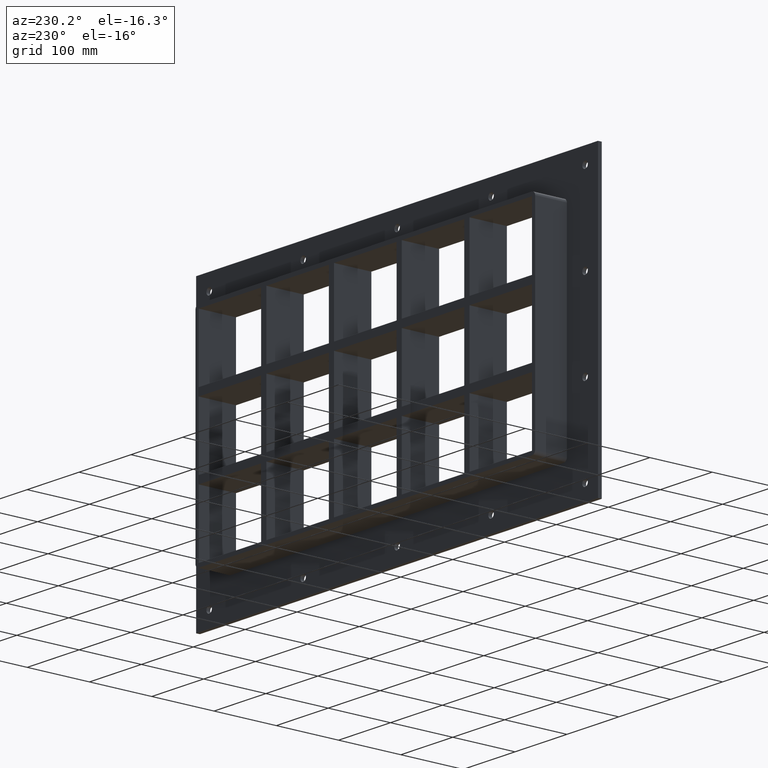
[diagram: clean part render]
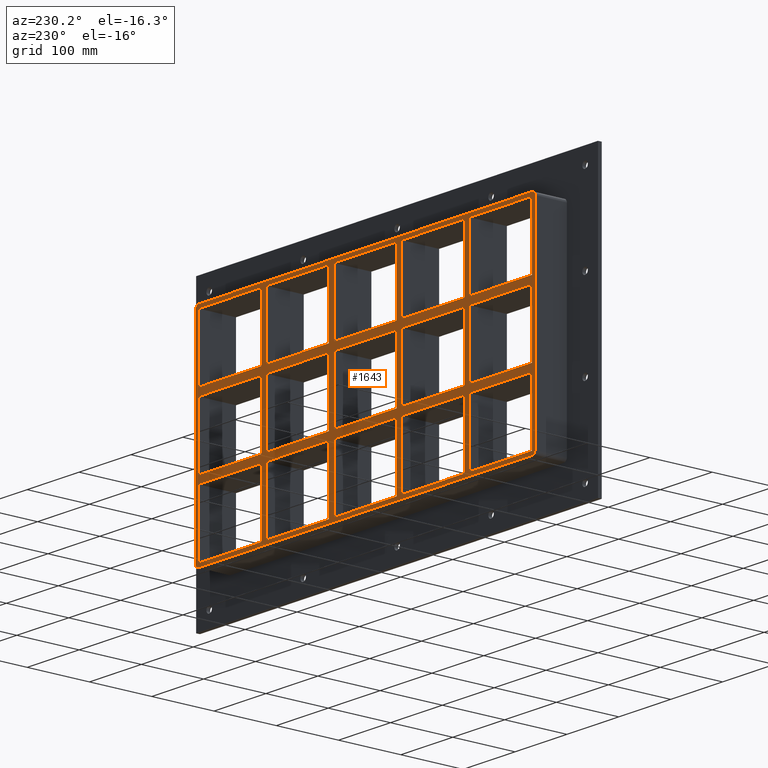
[diagram: same view with one face highlighted and labeled with its STEP entity id]
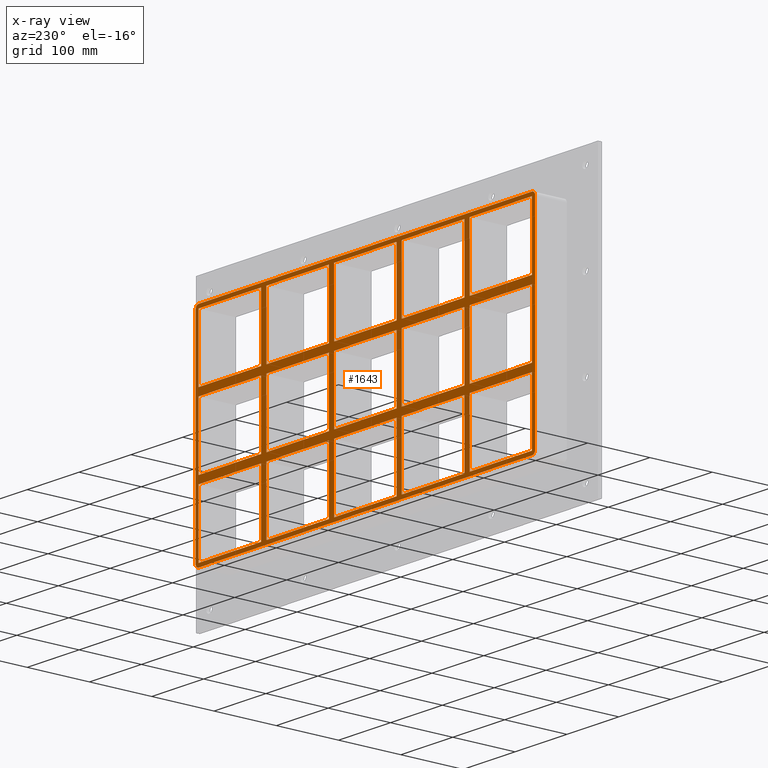
[diagram: x-ray of the same camera — body ghosted, the highlighted face saturated]
A machine part, auxiliary view. The second image highlights one B-rep face of the part: STEP entity #1643.
The next image is the same camera in x-ray: the body ghosted, the highlighted face saturated — about 0% of this face is hidden behind the body in this view.
In plain terms, the highlighted planar face has unit normal (0, 1, 0).
Its self-contained STEP definition (entity closure, byte-faithful):
#467=CARTESIAN_POINT('',(-200.7500000000021,57.0,50.499999999989811));
#468=VERTEX_POINT('',#467);
#483=CARTESIAN_POINT('',(-321.25000000000045,57.0,50.499999999989775));
#484=VERTEX_POINT('',#483);
#491=CARTESIAN_POINT('',(-200.75000000000205,57.0,50.499999999989782));
#492=DIRECTION('',(-1.0,0.0,0.0));
#493=VECTOR('',#492,120.49999999999841);
#494=LINE('',#491,#493);
#495=EDGE_CURVE('',#468,#484,#494,.T.);
#507=CARTESIAN_POINT('',(-70.250000000002046,57.0,50.499999999989797));
#508=VERTEX_POINT('',#507);
#523=CARTESIAN_POINT('',(-190.75000000000728,57.0,50.499999999989797));
#524=VERTEX_POINT('',#523);
#531=CARTESIAN_POINT('',(-70.250000000002046,57.0,50.49999999998979));
#532=DIRECTION('',(-1.0,0.0,0.0));
#533=VECTOR('',#532,120.50000000000523);
#534=LINE('',#531,#533);
#535=EDGE_CURVE('',#508,#524,#534,.T.);
#547=CARTESIAN_POINT('',(60.249999999997925,57.0,50.499999999989811));
#548=VERTEX_POINT('',#547);
#563=CARTESIAN_POINT('',(-60.250000000007304,57.0,50.499999999989797));
#564=VERTEX_POINT('',#563);
#571=CARTESIAN_POINT('',(60.249999999997954,57.0,50.499999999989804));
#572=DIRECTION('',(-1.0,0.0,0.0));
#573=VECTOR('',#572,120.50000000000523);
#574=LINE('',#571,#573);
#575=EDGE_CURVE('',#548,#564,#574,.T.);
#585=CARTESIAN_POINT('',(200.74999999999278,57.0,50.499999999989818));
#586=VERTEX_POINT('',#585);
#595=CARTESIAN_POINT('',(321.25,57.0,50.499999999989825));
#596=VERTEX_POINT('',#595);
#597=CARTESIAN_POINT('',(321.25,57.0,50.499999999989825));
#598=DIRECTION('',(-1.0,0.0,0.0));
#599=VECTOR('',#598,120.50000000000722);
#600=LINE('',#597,#599);
#601=EDGE_CURVE('',#596,#586,#600,.T.);
#627=CARTESIAN_POINT('',(190.74999999999795,57.0,50.499999999989818));
#628=VERTEX_POINT('',#627);
#643=CARTESIAN_POINT('',(70.249999999992738,57.0,50.499999999989811));
#644=VERTEX_POINT('',#643);
#651=CARTESIAN_POINT('',(190.74999999999795,57.0,50.499999999989811));
#652=DIRECTION('',(-1.0,0.0,0.0));
#653=VECTOR('',#652,120.50000000000523);
#654=LINE('',#651,#653);
#655=EDGE_CURVE('',#628,#644,#654,.T.);
#665=CARTESIAN_POINT('',(-200.7500000000021,57.0,62.499999999999893));
#666=VERTEX_POINT('',#665);
#675=CARTESIAN_POINT('',(-321.25000000000045,57.0,62.499999999999893));
#676=VERTEX_POINT('',#675);
#677=CARTESIAN_POINT('',(-321.25000000000045,57.0,62.499999999999893));
#678=DIRECTION('',(1.0,0.0,0.0));
#679=VECTOR('',#678,120.49999999999835);
#680=LINE('',#677,#679);
#681=EDGE_CURVE('',#676,#666,#680,.T.);
#707=CARTESIAN_POINT('',(200.74999999999278,57.0,62.499999999999893));
#708=VERTEX_POINT('',#707);
#723=CARTESIAN_POINT('',(321.25000000000011,57.0,62.499999999999893));
#724=VERTEX_POINT('',#723);
#731=CARTESIAN_POINT('',(200.74999999999272,57.0,62.499999999999893));
#732=DIRECTION('',(1.0,0.0,0.0));
#733=VECTOR('',#732,120.50000000000739);
#734=LINE('',#731,#733);
#735=EDGE_CURVE('',#708,#724,#734,.T.);
#745=CARTESIAN_POINT('',(-70.250000000002075,57.0,62.499999999999893));
#746=VERTEX_POINT('',#745);
#755=CARTESIAN_POINT('',(-190.75000000000728,57.0,62.499999999999893));
#756=VERTEX_POINT('',#755);
#757=CARTESIAN_POINT('',(-190.7500000000073,57.0,62.499999999999893));
#758=DIRECTION('',(1.0,0.0,0.0));
#759=VECTOR('',#758,120.5000000000052);
#760=LINE('',#757,#759);
#761=EDGE_CURVE('',#756,#746,#760,.T.);
#785=CARTESIAN_POINT('',(60.249999999997925,57.0,62.499999999999893));
#786=VERTEX_POINT('',#785);
#795=CARTESIAN_POINT('',(-60.250000000007269,57.0,62.499999999999893));
#796=VERTEX_POINT('',#795);
#797=CARTESIAN_POINT('',(-60.250000000007276,57.0,62.499999999999893));
#798=DIRECTION('',(1.0,0.0,0.0));
#799=VECTOR('',#798,120.50000000000517);
#800=LINE('',#797,#799);
#801=EDGE_CURVE('',#796,#786,#800,.T.);
#825=CARTESIAN_POINT('',(190.74999999999795,57.0,62.499999999999893));
#826=VERTEX_POINT('',#825);
#835=CARTESIAN_POINT('',(70.249999999992738,57.0,62.499999999999893));
#836=VERTEX_POINT('',#835);
#837=CARTESIAN_POINT('',(70.249999999992724,57.0,62.499999999999893));
#838=DIRECTION('',(1.0,0.0,0.0));
#839=VECTOR('',#838,120.50000000000523);
#840=LINE('',#837,#839);
#841=EDGE_CURVE('',#836,#826,#840,.T.);
#866=CARTESIAN_POINT('',(-321.25,57.0,163.50000000000006));
#867=VERTEX_POINT('',#866);
#868=CARTESIAN_POINT('',(-321.25,57.0,163.50000000000003));
#869=DIRECTION('',(0.0,0.0,-1.0));
#870=VECTOR('',#869,101.00000000000014);
#871=LINE('',#868,#870);
#872=EDGE_CURVE('',#867,#676,#871,.T.);
#897=CARTESIAN_POINT('',(321.25000000000011,57.0,-50.500000000000114));
#898=VERTEX_POINT('',#897);
#899=CARTESIAN_POINT('',(321.25,57.0,-50.500000000000114));
#900=DIRECTION('',(0.0,0.0,1.0));
#901=VECTOR('',#900,100.99999999998994);
#902=LINE('',#899,#901);
#903=EDGE_CURVE('',#898,#596,#902,.T.);
#936=CARTESIAN_POINT('',(321.25,57.0,163.50000000000006));
#937=VERTEX_POINT('',#936);
#944=CARTESIAN_POINT('',(321.25,57.0,62.499999999999901));
#945=DIRECTION('',(0.0,0.0,1.0));
#946=VECTOR('',#945,101.00000000000016);
#947=LINE('',#944,#946);
#948=EDGE_CURVE('',#724,#937,#947,.T.);
#967=CARTESIAN_POINT('',(190.74999999999795,57.0,163.50000000000006));
#968=VERTEX_POINT('',#967);
#975=CARTESIAN_POINT('',(190.74999999999795,57.0,62.499999999999886));
#976=DIRECTION('',(0.0,0.0,1.0));
#977=VECTOR('',#976,101.00000000000017);
#978=LINE('',#975,#977);
#979=EDGE_CURVE('',#826,#968,#978,.T.);
#990=CARTESIAN_POINT('',(200.74999999999278,57.0,163.50000000000006));
#991=VERTEX_POINT('',#990);
#992=CARTESIAN_POINT('',(200.74999999999278,57.0,163.50000000000006));
#993=DIRECTION('',(0.0,0.0,-1.0));
#994=VECTOR('',#993,101.00000000000016);
#995=LINE('',#992,#994);
#996=EDGE_CURVE('',#991,#708,#995,.T.);
#1029=CARTESIAN_POINT('',(60.249999999997925,57.0,163.50000000000006));
#1030=VERTEX_POINT('',#1029);
#1037=CARTESIAN_POINT('',(60.249999999997925,57.0,62.499999999999886));
#1038=DIRECTION('',(0.0,0.0,1.0));
#1039=VECTOR('',#1038,101.00000000000017);
#1040=LINE('',#1037,#1039);
#1041=EDGE_CURVE('',#786,#1030,#1040,.T.);
#1052=CARTESIAN_POINT('',(70.249999999992738,57.0,163.50000000000006));
#1053=VERTEX_POINT('',#1052);
#1054=CARTESIAN_POINT('',(70.249999999992738,57.0,163.50000000000006));
#1055=DIRECTION('',(0.0,0.0,-1.0));
#1056=VECTOR('',#1055,101.00000000000016);
#1057=LINE('',#1054,#1056);
#1058=EDGE_CURVE('',#1053,#836,#1057,.T.);
#1091=CARTESIAN_POINT('',(-70.250000000002075,57.0,163.50000000000006));
#1092=VERTEX_POINT('',#1091);
#1099=CARTESIAN_POINT('',(-70.250000000002075,57.0,62.499999999999886));
#1100=DIRECTION('',(0.0,0.0,1.0));
#1101=VECTOR('',#1100,101.00000000000017);
#1102=LINE('',#1099,#1101);
#1103=EDGE_CURVE('',#746,#1092,#1102,.T.);
#1114=CARTESIAN_POINT('',(-60.250000000007269,57.0,163.50000000000006));
#1115=VERTEX_POINT('',#1114);
#1116=CARTESIAN_POINT('',(-60.250000000007269,57.0,163.50000000000006));
#1117=DIRECTION('',(0.0,0.0,-1.0));
#1118=VECTOR('',#1117,101.00000000000016);
#1119=LINE('',#1116,#1118);
#1120=EDGE_CURVE('',#1115,#796,#1119,.T.);
#1153=CARTESIAN_POINT('',(-200.7500000000021,57.0,163.50000000000006));
#1154=VERTEX_POINT('',#1153);
#1161=CARTESIAN_POINT('',(-200.7500000000021,57.0,62.499999999999886));
#1162=DIRECTION('',(0.0,0.0,1.0));
#1163=VECTOR('',#1162,101.00000000000017);
#1164=LINE('',#1161,#1163);
#1165=EDGE_CURVE('',#666,#1154,#1164,.T.);
#1176=CARTESIAN_POINT('',(-200.7500000000021,57.0,-50.500000000000114));
#1177=VERTEX_POINT('',#1176);
#1178=CARTESIAN_POINT('',(-200.7500000000021,57.0,-50.500000000000114));
#1179=DIRECTION('',(0.0,0.0,1.0));
#1180=VECTOR('',#1179,100.99999999998991);
#1181=LINE('',#1178,#1180);
#1182=EDGE_CURVE('',#1177,#468,#1181,.T.);
#1207=CARTESIAN_POINT('',(-190.75000000000728,57.0,163.50000000000006));
#1208=VERTEX_POINT('',#1207);
#1209=CARTESIAN_POINT('',(-190.75000000000728,57.0,163.50000000000006));
#1210=DIRECTION('',(0.0,0.0,-1.0));
#1211=VECTOR('',#1210,101.00000000000016);
#1212=LINE('',#1209,#1211);
#1213=EDGE_CURVE('',#1208,#756,#1212,.T.);
#1232=CARTESIAN_POINT('',(0.0,57.0,0.0));
#1233=DIRECTION('',(0.0,1.0,0.0));
#1234=DIRECTION('',(0.0,0.0,1.0));
#1235=AXIS2_PLACEMENT_3D('',#1232,#1233,#1234);
#1236=PLANE('',#1235);
#1237=CARTESIAN_POINT('',(321.25,57.0,-169.50000000000003));
#1238=VERTEX_POINT('',#1237);
#1239=CARTESIAN_POINT('',(327.25,57.0,-163.5));
#1240=VERTEX_POINT('',#1239);
#1241=CARTESIAN_POINT('',(321.25,57.0,-163.5));
#1242=DIRECTION('',(0.0,-1.0,0.0));
#1243=DIRECTION('',(0.707106781186543,0.0,-0.707106781186552));
#1244=AXIS2_PLACEMENT_3D('',#1241,#1242,#1243);
#1245=CIRCLE('',#1244,6.000000000000001);
#1246=EDGE_CURVE('',#1238,#1240,#1245,.T.);
#1247=ORIENTED_EDGE('',*,*,#1246,.F.);
#1248=CARTESIAN_POINT('',(-321.24999999999994,57.0,-169.50000000000003));
#1249=VERTEX_POINT('',#1248);
#1250=CARTESIAN_POINT('',(321.25,57.0,-169.50000000000003));
#1251=DIRECTION('',(-1.0,0.0,0.0));
#1252=VECTOR('',#1251,642.5);
#1253=LINE('',#1250,#1252);
#1254=EDGE_CURVE('',#1238,#1249,#1253,.T.);
#1255=ORIENTED_EDGE('',*,*,#1254,.T.);
#1256=CARTESIAN_POINT('',(-327.25,57.0,-163.5));
#1257=VERTEX_POINT('',#1256);
#1258=CARTESIAN_POINT('',(-321.25,57.0,-163.5));
#1259=DIRECTION('',(0.0,-1.0,0.0));
#1260=DIRECTION('',(-0.707106781186543,0.0,-0.707106781186552));
#1261=AXIS2_PLACEMENT_3D('',#1258,#1259,#1260);
#1262=CIRCLE('',#1261,6.000000000000001);
#1263=EDGE_CURVE('',#1257,#1249,#1262,.T.);
#1264=ORIENTED_EDGE('',*,*,#1263,.F.);
#1265=CARTESIAN_POINT('',(-327.25,57.0,163.5));
#1266=VERTEX_POINT('',#1265);
#1267=CARTESIAN_POINT('',(-327.25,57.0,-163.5));
#1268=DIRECTION('',(0.0,0.0,1.0));
#1269=VECTOR('',#1268,327.0);
#1270=LINE('',#1267,#1269);
#1271=EDGE_CURVE('',#1257,#1266,#1270,.T.);
#1272=ORIENTED_EDGE('',*,*,#1271,.T.);
#1273=CARTESIAN_POINT('',(-321.25,57.0,169.50000000000003));
#1274=VERTEX_POINT('',#1273);
#1275=CARTESIAN_POINT('',(-321.25,57.0,163.5));
#1276=DIRECTION('',(0.0,-1.0,0.0));
#1277=DIRECTION('',(-0.707106781186543,0.0,0.707106781186552));
#1278=AXIS2_PLACEMENT_3D('',#1275,#1276,#1277);
#1279=CIRCLE('',#1278,6.000000000000001);
#1280=EDGE_CURVE('',#1274,#1266,#1279,.T.);
#1281=ORIENTED_EDGE('',*,*,#1280,.F.);
#1282=CARTESIAN_POINT('',(321.24999999999994,57.0,169.50000000000003));
#1283=VERTEX_POINT('',#1282);
#1284=CARTESIAN_POINT('',(-321.25,57.0,169.50000000000003));
#1285=DIRECTION('',(1.0,0.0,0.0));
#1286=VECTOR('',#1285,642.5);
#1287=LINE('',#1284,#1286);
#1288=EDGE_CURVE('',#1274,#1283,#1287,.T.);
#1289=ORIENTED_EDGE('',*,*,#1288,.T.);
#1290=CARTESIAN_POINT('',(327.25,57.0,163.5));
#1291=VERTEX_POINT('',#1290);
#1292=CARTESIAN_POINT('',(321.25,57.0,163.5));
#1293=DIRECTION('',(0.0,-1.0,0.0));
#1294=DIRECTION('',(0.707106781186543,0.0,0.707106781186552));
#1295=AXIS2_PLACEMENT_3D('',#1292,#1293,#1294);
#1296=CIRCLE('',#1295,6.000000000000001);
#1297=EDGE_CURVE('',#1291,#1283,#1296,.T.);
#1298=ORIENTED_EDGE('',*,*,#1297,.F.);
#1299=CARTESIAN_POINT('',(327.25,57.0,163.5));
#1300=DIRECTION('',(0.0,0.0,-1.0));
#1301=VECTOR('',#1300,327.0);
#1302=LINE('',#1299,#1301);
#1303=EDGE_CURVE('',#1291,#1240,#1302,.T.);
#1304=ORIENTED_EDGE('',*,*,#1303,.T.);
#1305=EDGE_LOOP('',(#1247,#1255,#1264,#1272,#1281,#1289,#1298,#1304));
#1306=FACE_OUTER_BOUND('',#1305,.T.);
#1307=CARTESIAN_POINT('',(-321.25000000000045,57.0,-50.500000000000114));
#1308=VERTEX_POINT('',#1307);
#1309=CARTESIAN_POINT('',(-321.25,57.0,50.499999999989768));
#1310=DIRECTION('',(0.0,0.0,-1.0));
#1311=VECTOR('',#1310,100.99999999998988);
#1312=LINE('',#1309,#1311);
#1313=EDGE_CURVE('',#484,#1308,#1312,.T.);
#1314=ORIENTED_EDGE('',*,*,#1313,.T.);
#1315=CARTESIAN_POINT('',(-321.25000000000045,57.0,-50.500000000000114));
#1316=DIRECTION('',(1.0,0.0,0.0));
#1317=VECTOR('',#1316,120.49999999999835);
#1318=LINE('',#1315,#1317);
#1319=EDGE_CURVE('',#1308,#1177,#1318,.T.);
#1320=ORIENTED_EDGE('',*,*,#1319,.T.);
#1321=ORIENTED_EDGE('',*,*,#1182,.T.);
#1322=ORIENTED_EDGE('',*,*,#495,.T.);
#1323=EDGE_LOOP('',(#1314,#1320,#1321,#1322));
#1324=FACE_BOUND('',#1323,.T.);
#1325=ORIENTED_EDGE('',*,*,#948,.T.);
#1326=CARTESIAN_POINT('',(321.25,57.0,163.50000000000006));
#1327=DIRECTION('',(-1.0,0.0,0.0));
#1328=VECTOR('',#1327,120.50000000000722);
#1329=LINE('',#1326,#1328);
#1330=EDGE_CURVE('',#937,#991,#1329,.T.);
#1331=ORIENTED_EDGE('',*,*,#1330,.T.);
#1332=ORIENTED_EDGE('',*,*,#996,.T.);
#1333=ORIENTED_EDGE('',*,*,#735,.T.);
#1334=EDGE_LOOP('',(#1325,#1331,#1332,#1333));
#1335=FACE_BOUND('',#1334,.T.);
#1336=ORIENTED_EDGE('',*,*,#979,.T.);
#1337=CARTESIAN_POINT('',(190.74999999999795,57.0,163.50000000000006));
#1338=DIRECTION('',(-1.0,0.0,0.0));
#1339=VECTOR('',#1338,120.50000000000523);
#1340=LINE('',#1337,#1339);
#1341=EDGE_CURVE('',#968,#1053,#1340,.T.);
#1342=ORIENTED_EDGE('',*,*,#1341,.T.);
#1343=ORIENTED_EDGE('',*,*,#1058,.T.);
#1344=ORIENTED_EDGE('',*,*,#841,.T.);
#1345=EDGE_LOOP('',(#1336,#1342,#1343,#1344));
#1346=FACE_BOUND('',#1345,.T.);
#1347=ORIENTED_EDGE('',*,*,#1041,.T.);
#1348=CARTESIAN_POINT('',(60.249999999997925,57.0,163.50000000000006));
#1349=DIRECTION('',(-1.0,0.0,0.0));
#1350=VECTOR('',#1349,120.5000000000052);
#1351=LINE('',#1348,#1350);
#1352=EDGE_CURVE('',#1030,#1115,#1351,.T.);
#1353=ORIENTED_EDGE('',*,*,#1352,.T.);
#1354=ORIENTED_EDGE('',*,*,#1120,.T.);
#1355=ORIENTED_EDGE('',*,*,#801,.T.);
#1356=EDGE_LOOP('',(#1347,#1353,#1354,#1355));
#1357=FACE_BOUND('',#1356,.T.);
#1358=ORIENTED_EDGE('',*,*,#1103,.T.);
#1359=CARTESIAN_POINT('',(-70.250000000002075,57.0,163.50000000000006));
#1360=DIRECTION('',(-1.0,0.0,0.0));
#1361=VECTOR('',#1360,120.5000000000052);
#1362=LINE('',#1359,#1361);
#1363=EDGE_CURVE('',#1092,#1208,#1362,.T.);
#1364=ORIENTED_EDGE('',*,*,#1363,.T.);
#1365=ORIENTED_EDGE('',*,*,#1213,.T.);
#1366=ORIENTED_EDGE('',*,*,#761,.T.);
#1367=EDGE_LOOP('',(#1358,#1364,#1365,#1366));
#1368=FACE_BOUND('',#1367,.T.);
#1369=ORIENTED_EDGE('',*,*,#601,.T.);
#1370=CARTESIAN_POINT('',(200.74999999999278,57.0,-50.500000000000114));
#1371=VERTEX_POINT('',#1370);
#1372=CARTESIAN_POINT('',(200.74999999999278,57.0,50.499999999989825));
#1373=DIRECTION('',(0.0,0.0,-1.0));
#1374=VECTOR('',#1373,100.99999999998994);
#1375=LINE('',#1372,#1374);
#1376=EDGE_CURVE('',#586,#1371,#1375,.T.);
#1377=ORIENTED_EDGE('',*,*,#1376,.T.);
#1378=CARTESIAN_POINT('',(200.74999999999272,57.0,-50.500000000000114));
#1379=DIRECTION('',(1.0,0.0,0.0));
#1380=VECTOR('',#1379,120.50000000000739);
#1381=LINE('',#1378,#1380);
#1382=EDGE_CURVE('',#1371,#898,#1381,.T.);
#1383=ORIENTED_EDGE('',*,*,#1382,.T.);
#1384=ORIENTED_EDGE('',*,*,#903,.T.);
#1385=EDGE_LOOP('',(#1369,#1377,#1383,#1384));
#1386=FACE_BOUND('',#1385,.T.);
#1387=ORIENTED_EDGE('',*,*,#655,.T.);
#1388=CARTESIAN_POINT('',(70.249999999992738,57.0,-50.500000000000114));
#1389=VERTEX_POINT('',#1388);
#1390=CARTESIAN_POINT('',(70.249999999992738,57.0,50.499999999989825));
#1391=DIRECTION('',(0.0,0.0,-1.0));
#1392=VECTOR('',#1391,100.99999999998994);
#1393=LINE('',#1390,#1392);
#1394=EDGE_CURVE('',#644,#1389,#1393,.T.);
#1395=ORIENTED_EDGE('',*,*,#1394,.T.);
#1396=CARTESIAN_POINT('',(190.74999999999795,57.0,-50.500000000000114));
#1397=VERTEX_POINT('',#1396);
#1398=CARTESIAN_POINT('',(70.249999999992724,57.0,-50.500000000000114));
#1399=DIRECTION('',(1.0,0.0,0.0));
#1400=VECTOR('',#1399,120.50000000000523);
#1401=LINE('',#1398,#1400);
#1402=EDGE_CURVE('',#1389,#1397,#1401,.T.);
#1403=ORIENTED_EDGE('',*,*,#1402,.T.);
#1404=CARTESIAN_POINT('',(190.74999999999795,57.0,-50.500000000000114));
#1405=DIRECTION('',(0.0,0.0,1.0));
#1406=VECTOR('',#1405,100.99999999998991);
#1407=LINE('',#1404,#1406);
#1408=EDGE_CURVE('',#1397,#628,#1407,.T.);
#1409=ORIENTED_EDGE('',*,*,#1408,.T.);
#1410=EDGE_LOOP('',(#1387,#1395,#1403,#1409));
#1411=FACE_BOUND('',#1410,.T.);
#1412=ORIENTED_EDGE('',*,*,#575,.T.);
#1413=CARTESIAN_POINT('',(-60.250000000007269,57.0,-50.500000000000114));
#1414=VERTEX_POINT('',#1413);
#1415=CARTESIAN_POINT('',(-60.250000000007269,57.0,50.499999999989797));
#1416=DIRECTION('',(0.0,0.0,-1.0));
#1417=VECTOR('',#1416,100.99999999998991);
#1418=LINE('',#1415,#1417);
#1419=EDGE_CURVE('',#564,#1414,#1418,.T.);
#1420=ORIENTED_EDGE('',*,*,#1419,.T.);
#1421=CARTESIAN_POINT('',(60.249999999997925,57.0,-50.500000000000114));
#1422=VERTEX_POINT('',#1421);
#1423=CARTESIAN_POINT('',(-60.250000000007276,57.0,-50.500000000000114));
#1424=DIRECTION('',(1.0,0.0,0.0));
#1425=VECTOR('',#1424,120.50000000000517);
#1426=LINE('',#1423,#1425);
#1427=EDGE_CURVE('',#1414,#1422,#1426,.T.);
#1428=ORIENTED_EDGE('',*,*,#1427,.T.);
#1429=CARTESIAN_POINT('',(60.249999999997925,57.0,-50.500000000000114));
#1430=DIRECTION('',(0.0,0.0,1.0));
#1431=VECTOR('',#1430,100.99999999998991);
#1432=LINE('',#1429,#1431);
#1433=EDGE_CURVE('',#1422,#548,#1432,.T.);
#1434=ORIENTED_EDGE('',*,*,#1433,.T.);
#1435=EDGE_LOOP('',(#1412,#1420,#1428,#1434));
#1436=FACE_BOUND('',#1435,.T.);
#1437=ORIENTED_EDGE('',*,*,#535,.T.);
#1438=CARTESIAN_POINT('',(-190.75000000000728,57.0,-50.500000000000114));
#1439=VERTEX_POINT('',#1438);
#1440=CARTESIAN_POINT('',(-190.75000000000728,57.0,50.499999999989797));
#1441=DIRECTION('',(0.0,0.0,-1.0));
#1442=VECTOR('',#1441,100.99999999998991);
#1443=LINE('',#1440,#1442);
#1444=EDGE_CURVE('',#524,#1439,#1443,.T.);
#1445=ORIENTED_EDGE('',*,*,#1444,.T.);
#1446=CARTESIAN_POINT('',(-70.250000000002075,57.0,-50.500000000000114));
#1447=VERTEX_POINT('',#1446);
#1448=CARTESIAN_POINT('',(-190.7500000000073,57.0,-50.500000000000114));
#1449=DIRECTION('',(1.0,0.0,0.0));
#1450=VECTOR('',#1449,120.5000000000052);
#1451=LINE('',#1448,#1450);
#1452=EDGE_CURVE('',#1439,#1447,#1451,.T.);
#1453=ORIENTED_EDGE('',*,*,#1452,.T.);
#1454=CARTESIAN_POINT('',(-70.250000000002075,57.0,-50.500000000000114));
#1455=DIRECTION('',(0.0,0.0,1.0));
#1456=VECTOR('',#1455,100.99999999998988);
#1457=LINE('',#1454,#1456);
#1458=EDGE_CURVE('',#1447,#508,#1457,.T.);
#1459=ORIENTED_EDGE('',*,*,#1458,.T.);
#1460=EDGE_LOOP('',(#1437,#1445,#1453,#1459));
#1461=FACE_BOUND('',#1460,.T.);
#1462=CARTESIAN_POINT('',(-321.25000000000045,57.0,-62.500000000010232));
#1463=VERTEX_POINT('',#1462);
#1464=CARTESIAN_POINT('',(-321.25,57.0,-163.50000000000006));
#1465=VERTEX_POINT('',#1464);
#1466=CARTESIAN_POINT('',(-321.25,57.0,-62.500000000010232));
#1467=DIRECTION('',(0.0,0.0,-1.0));
#1468=VECTOR('',#1467,100.99999999998983);
#1469=LINE('',#1466,#1468);
#1470=EDGE_CURVE('',#1463,#1465,#1469,.T.);
#1471=ORIENTED_EDGE('',*,*,#1470,.T.);
#1472=CARTESIAN_POINT('',(-200.7500000000021,57.0,-163.50000000000006));
#1473=VERTEX_POINT('',#1472);
#1474=CARTESIAN_POINT('',(-321.25,57.0,-163.50000000000006));
#1475=DIRECTION('',(1.0,0.0,0.0));
#1476=VECTOR('',#1475,120.4999999999979);
#1477=LINE('',#1474,#1476);
#1478=EDGE_CURVE('',#1465,#1473,#1477,.T.);
#1479=ORIENTED_EDGE('',*,*,#1478,.T.);
#1480=CARTESIAN_POINT('',(-200.7500000000021,57.0,-62.500000000010225));
#1481=VERTEX_POINT('',#1480);
#1482=CARTESIAN_POINT('',(-200.7500000000021,57.0,-163.50000000000006));
#1483=DIRECTION('',(0.0,0.0,1.0));
#1484=VECTOR('',#1483,100.99999999998983);
#1485=LINE('',#1482,#1484);
#1486=EDGE_CURVE('',#1473,#1481,#1485,.T.);
#1487=ORIENTED_EDGE('',*,*,#1486,.T.);
#1488=CARTESIAN_POINT('',(-200.75000000000205,57.0,-62.500000000010218));
#1489=DIRECTION('',(-1.0,0.0,0.0));
#1490=VECTOR('',#1489,120.49999999999841);
#1491=LINE('',#1488,#1490);
#1492=EDGE_CURVE('',#1481,#1463,#1491,.T.);
#1493=ORIENTED_EDGE('',*,*,#1492,.T.);
#1494=EDGE_LOOP('',(#1471,#1479,#1487,#1493));
#1495=FACE_BOUND('',#1494,.T.);
#1496=CARTESIAN_POINT('',(-70.250000000002075,57.0,-163.50000000000006));
#1497=VERTEX_POINT('',#1496);
#1498=CARTESIAN_POINT('',(-70.250000000002075,57.0,-62.500000000010218));
#1499=VERTEX_POINT('',#1498);
#1500=CARTESIAN_POINT('',(-70.250000000002075,57.0,-163.50000000000006));
#1501=DIRECTION('',(0.0,0.0,1.0));
#1502=VECTOR('',#1501,100.99999999998984);
#1503=LINE('',#1500,#1502);
#1504=EDGE_CURVE('',#1497,#1499,#1503,.T.);
#1505=ORIENTED_EDGE('',*,*,#1504,.T.);
#1506=CARTESIAN_POINT('',(-190.75000000000728,57.0,-62.500000000010225));
#1507=VERTEX_POINT('',#1506);
#1508=CARTESIAN_POINT('',(-70.250000000002046,57.0,-62.50000000001021));
#1509=DIRECTION('',(-1.0,0.0,0.0));
#1510=VECTOR('',#1509,120.50000000000523);
#1511=LINE('',#1508,#1510);
#1512=EDGE_CURVE('',#1499,#1507,#1511,.T.);
#1513=ORIENTED_EDGE('',*,*,#1512,.T.);
#1514=CARTESIAN_POINT('',(-190.75000000000728,57.0,-163.49999999998647));
#1515=VERTEX_POINT('',#1514);
#1516=CARTESIAN_POINT('',(-190.75000000000728,57.0,-62.500000000010232));
#1517=DIRECTION('',(0.0,0.0,-1.0));
#1518=VECTOR('',#1517,100.99999999997624);
#1519=LINE('',#1516,#1518);
#1520=EDGE_CURVE('',#1507,#1515,#1519,.T.);
#1521=ORIENTED_EDGE('',*,*,#1520,.T.);
#1522=CARTESIAN_POINT('',(-190.75000000000728,57.0,-163.50000000000006));
#1523=DIRECTION('',(1.0,0.0,0.0));
#1524=VECTOR('',#1523,120.5000000000052);
#1525=LINE('',#1522,#1524);
#1526=EDGE_CURVE('',#1515,#1497,#1525,.T.);
#1527=ORIENTED_EDGE('',*,*,#1526,.T.);
#1528=EDGE_LOOP('',(#1505,#1513,#1521,#1527));
#1529=FACE_BOUND('',#1528,.T.);
#1530=CARTESIAN_POINT('',(60.249999999997925,57.0,-163.50000000000006));
#1531=VERTEX_POINT('',#1530);
#1532=CARTESIAN_POINT('',(60.249999999997925,57.0,-62.500000000010196));
#1533=VERTEX_POINT('',#1532);
#1534=CARTESIAN_POINT('',(60.249999999997925,57.0,-163.50000000000006));
#1535=DIRECTION('',(0.0,0.0,1.0));
#1536=VECTOR('',#1535,100.99999999998985);
#1537=LINE('',#1534,#1536);
#1538=EDGE_CURVE('',#1531,#1533,#1537,.T.);
#1539=ORIENTED_EDGE('',*,*,#1538,.T.);
#1540=CARTESIAN_POINT('',(-60.250000000007269,57.0,-62.500000000010232));
#1541=VERTEX_POINT('',#1540);
#1542=CARTESIAN_POINT('',(60.249999999997954,57.0,-62.500000000010196));
#1543=DIRECTION('',(-1.0,0.0,0.0));
#1544=VECTOR('',#1543,120.50000000000523);
#1545=LINE('',#1542,#1544);
#1546=EDGE_CURVE('',#1533,#1541,#1545,.T.);
#1547=ORIENTED_EDGE('',*,*,#1546,.T.);
#1548=CARTESIAN_POINT('',(-60.250000000007269,57.0,-163.49999999998647));
#1549=VERTEX_POINT('',#1548);
#1550=CARTESIAN_POINT('',(-60.250000000007269,57.0,-62.500000000010232));
#1551=DIRECTION('',(0.0,0.0,-1.0));
#1552=VECTOR('',#1551,100.99999999997624);
#1553=LINE('',#1550,#1552);
#1554=EDGE_CURVE('',#1541,#1549,#1553,.T.);
#1555=ORIENTED_EDGE('',*,*,#1554,.T.);
#1556=CARTESIAN_POINT('',(-60.250000000007276,57.0,-163.50000000000006));
#1557=DIRECTION('',(1.0,0.0,0.0));
#1558=VECTOR('',#1557,120.5000000000052);
#1559=LINE('',#1556,#1558);
#1560=EDGE_CURVE('',#1549,#1531,#1559,.T.);
#1561=ORIENTED_EDGE('',*,*,#1560,.T.);
#1562=EDGE_LOOP('',(#1539,#1547,#1555,#1561));
#1563=FACE_BOUND('',#1562,.T.);
#1564=CARTESIAN_POINT('',(190.74999999999795,57.0,-163.50000000000006));
#1565=VERTEX_POINT('',#1564);
#1566=CARTESIAN_POINT('',(190.74999999999795,57.0,-62.500000000010196));
#1567=VERTEX_POINT('',#1566);
#1568=CARTESIAN_POINT('',(190.74999999999795,57.0,-163.50000000000006));
#1569=DIRECTION('',(0.0,0.0,1.0));
#1570=VECTOR('',#1569,100.99999999998985);
#1571=LINE('',#1568,#1570);
#1572=EDGE_CURVE('',#1565,#1567,#1571,.T.);
#1573=ORIENTED_EDGE('',*,*,#1572,.T.);
#1574=CARTESIAN_POINT('',(70.249999999992738,57.0,-62.500000000010232));
#1575=VERTEX_POINT('',#1574);
#1576=CARTESIAN_POINT('',(190.74999999999795,57.0,-62.500000000010189));
#1577=DIRECTION('',(-1.0,0.0,0.0));
#1578=VECTOR('',#1577,120.50000000000523);
#1579=LINE('',#1576,#1578);
#1580=EDGE_CURVE('',#1567,#1575,#1579,.T.);
#1581=ORIENTED_EDGE('',*,*,#1580,.T.);
#1582=CARTESIAN_POINT('',(70.249999999992738,57.0,-163.49999999998647));
#1583=VERTEX_POINT('',#1582);
#1584=CARTESIAN_POINT('',(70.249999999992738,57.0,-62.500000000010232));
#1585=DIRECTION('',(0.0,0.0,-1.0));
#1586=VECTOR('',#1585,100.99999999997624);
#1587=LINE('',#1584,#1586);
#1588=EDGE_CURVE('',#1575,#1583,#1587,.T.);
#1589=ORIENTED_EDGE('',*,*,#1588,.T.);
#1590=CARTESIAN_POINT('',(70.249999999992738,57.0,-163.50000000000006));
#1591=DIRECTION('',(1.0,0.0,0.0));
#1592=VECTOR('',#1591,120.50000000000522);
#1593=LINE('',#1590,#1592);
#1594=EDGE_CURVE('',#1583,#1565,#1593,.T.);
#1595=ORIENTED_EDGE('',*,*,#1594,.T.);
#1596=EDGE_LOOP('',(#1573,#1581,#1589,#1595));
#1597=FACE_BOUND('',#1596,.T.);
#1598=ORIENTED_EDGE('',*,*,#681,.T.);
#1599=ORIENTED_EDGE('',*,*,#1165,.T.);
#1600=CARTESIAN_POINT('',(-200.7500000000021,57.0,163.50000000000006));
#1601=DIRECTION('',(-1.0,0.0,0.0));
#1602=VECTOR('',#1601,120.4999999999979);
#1603=LINE('',#1600,#1602);
#1604=EDGE_CURVE('',#1154,#867,#1603,.T.);
#1605=ORIENTED_EDGE('',*,*,#1604,.T.);
#1606=ORIENTED_EDGE('',*,*,#872,.T.);
#1607=EDGE_LOOP('',(#1598,#1599,#1605,#1606));
#1608=FACE_BOUND('',#1607,.T.);
#1609=CARTESIAN_POINT('',(200.74999999999278,57.0,-163.49999999998647));
#1610=VERTEX_POINT('',#1609);
#1611=CARTESIAN_POINT('',(321.25,57.0,-163.50000000000006));
#1612=VERTEX_POINT('',#1611);
#1613=CARTESIAN_POINT('',(200.74999999999278,57.0,-163.50000000000006));
#1614=DIRECTION('',(1.0,0.0,0.0));
#1615=VECTOR('',#1614,120.50000000000722);
#1616=LINE('',#1613,#1615);
#1617=EDGE_CURVE('',#1610,#1612,#1616,.T.);
#1618=ORIENTED_EDGE('',*,*,#1617,.T.);
#1619=CARTESIAN_POINT('',(321.25,57.0,-62.500000000010175));
#1620=VERTEX_POINT('',#1619);
#1621=CARTESIAN_POINT('',(321.25,57.0,-163.50000000000003));
#1622=DIRECTION('',(0.0,0.0,1.0));
#1623=VECTOR('',#1622,100.99999999998985);
#1624=LINE('',#1621,#1623);
#1625=EDGE_CURVE('',#1612,#1620,#1624,.T.);
#1626=ORIENTED_EDGE('',*,*,#1625,.T.);
#1627=CARTESIAN_POINT('',(200.74999999999278,57.0,-62.500000000010196));
#1628=VERTEX_POINT('',#1627);
#1629=CARTESIAN_POINT('',(321.25,57.0,-62.500000000010175));
#1630=DIRECTION('',(-1.0,0.0,0.0));
#1631=VECTOR('',#1630,120.50000000000722);
#1632=LINE('',#1629,#1631);
#1633=EDGE_CURVE('',#1620,#1628,#1632,.T.);
#1634=ORIENTED_EDGE('',*,*,#1633,.T.);
#1635=CARTESIAN_POINT('',(200.74999999999278,57.0,-62.500000000010175));
#1636=DIRECTION('',(0.0,0.0,-1.0));
#1637=VECTOR('',#1636,100.9999999999763);
#1638=LINE('',#1635,#1637);
#1639=EDGE_CURVE('',#1628,#1610,#1638,.T.);
#1640=ORIENTED_EDGE('',*,*,#1639,.T.);
#1641=EDGE_LOOP('',(#1618,#1626,#1634,#1640));
#1642=FACE_BOUND('',#1641,.T.);
#1643=ADVANCED_FACE('',(#1306,#1324,#1335,#1346,#1357,#1368,#1386,#1411,#1436,#1461,#1495,#1529,#1563,#1597,#1608,#1642),#1236,.T.);